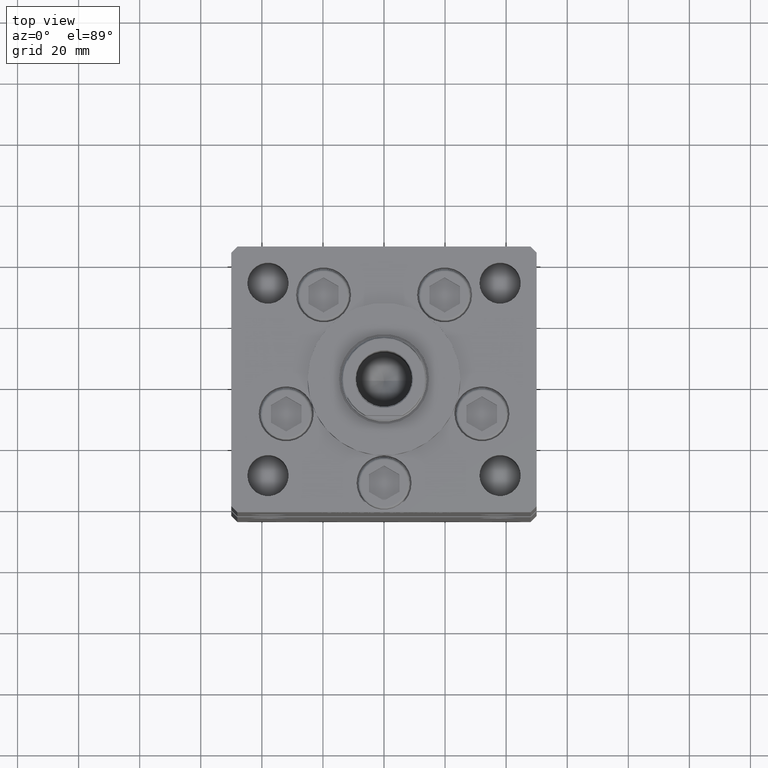
[diagram: clean part render]
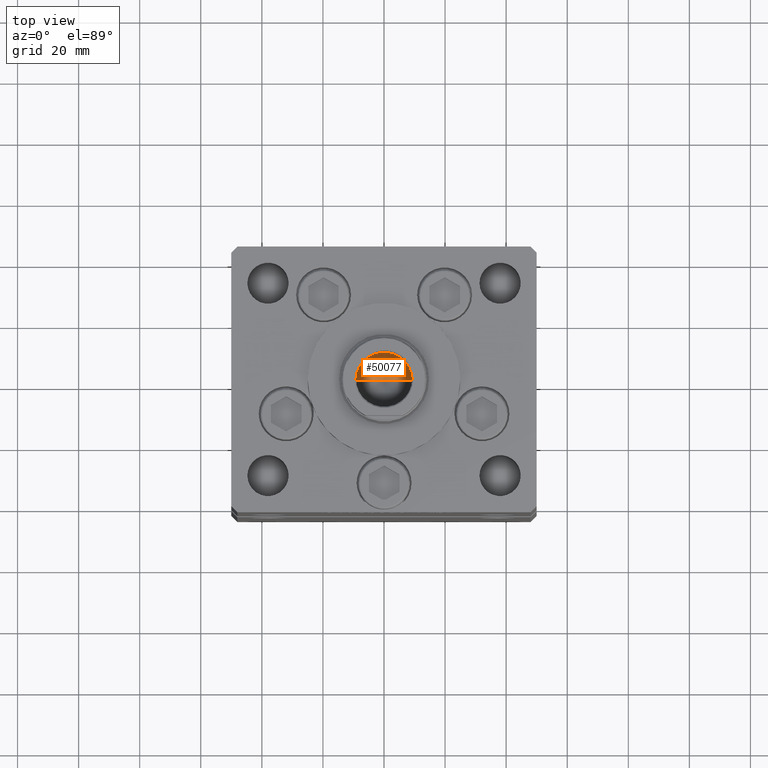
[diagram: same view with one face highlighted and labeled with its STEP entity id]
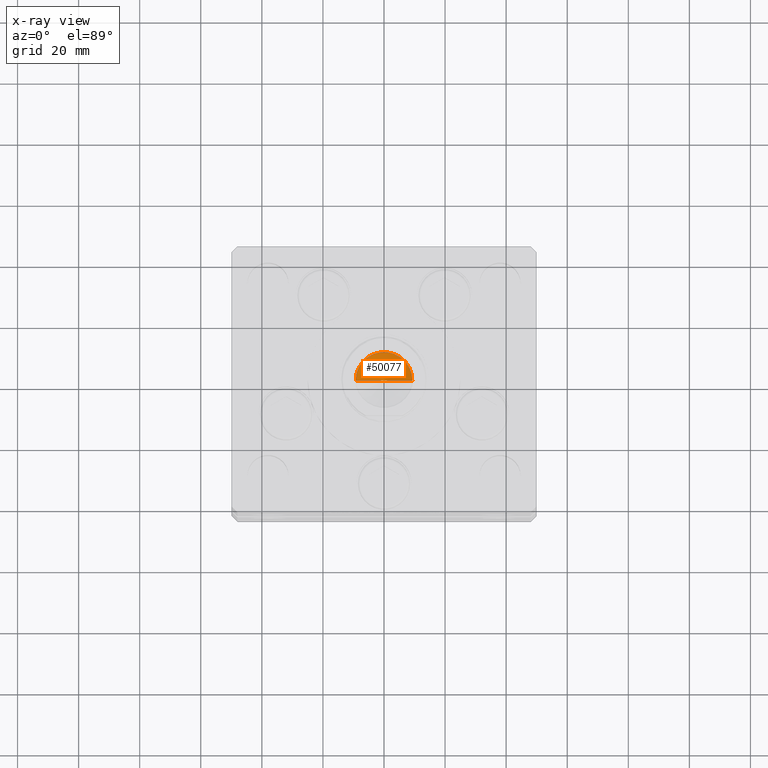
[diagram: x-ray of the same camera — body ghosted, the highlighted face saturated]
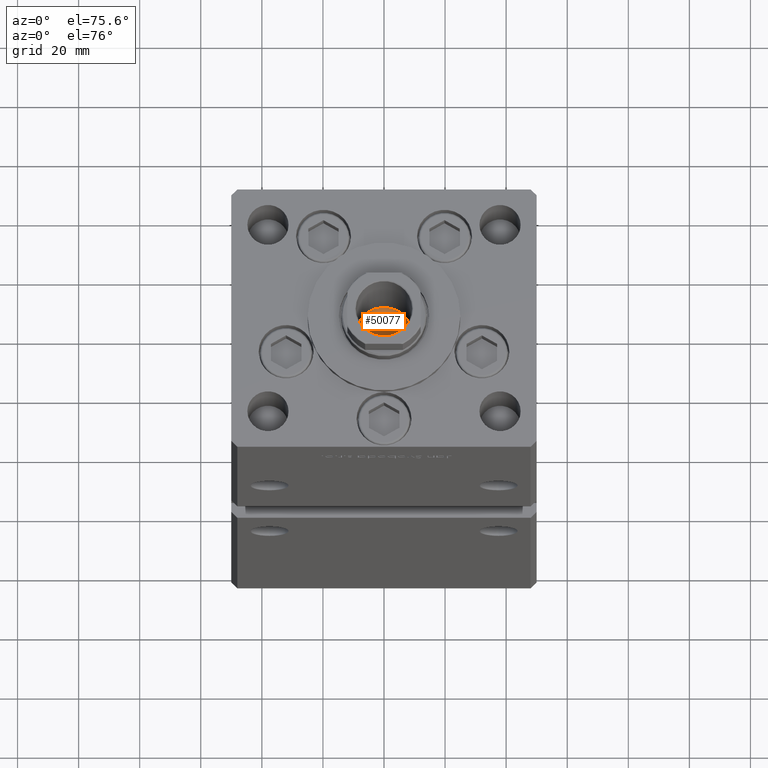
[diagram: same view with one face highlighted and labeled with its STEP entity id]
A machine part, top view. The second image highlights one B-rep face of the part: STEP entity #50077.
The next image is the same camera in x-ray: the body ghosted, the highlighted face saturated — about 0% of this face is hidden behind the body in this view.
A second angle (auxiliary view) of the same face is appended — the face is thin or edge-on in the first view.
In plain terms, the highlighted conical surface has half-angle 59 deg.
Its self-contained STEP definition (entity closure, byte-faithful):
#237 = CARTESIAN_POINT ( 'NONE',  ( 9.249999999999994671, 0.000000000000000000, 130.2500000000000000 ) ) ;
#2674 = CARTESIAN_POINT ( 'NONE',  ( 0.000000000000000000, 0.000000000000000000, 130.2500000000000000 ) ) ;
#4368 = CARTESIAN_POINT ( 'NONE',  ( 0.000000000000000000, 0.000000000000000000, 130.2500000000000000 ) ) ;
#5961 = ORIENTED_EDGE ( 'NONE', *, *, #29790, .T. ) ;
#10591 = VERTEX_POINT ( 'NONE', #237 ) ;
#13629 = ORIENTED_EDGE ( 'NONE', *, *, #22227, .T. ) ;
#16474 = EDGE_CURVE ( 'NONE', #52162, #29485, #29486, .T. ) ;
#20765 = DIRECTION ( 'NONE',  ( 1.000000000000000000, 0.000000000000000000, 0.000000000000000000 ) ) ;
#21173 = CARTESIAN_POINT ( 'NONE',  ( -9.249999999999994671, 1.132798289211300909E-15, 130.2500000000000000 ) ) ;
#22048 = FACE_OUTER_BOUND ( 'NONE', #29164, .T. ) ;
#22227 = EDGE_CURVE ( 'NONE', #52162, #10591, #32612, .T. ) ;
#23485 = CARTESIAN_POINT ( 'NONE',  ( 9.249999999999994671, 0.000000000000000000, 130.2500000000000000 ) ) ;
#26882 = DIRECTION ( 'NONE',  ( -0.000000000000000000, -0.000000000000000000, 1.000000000000000000 ) ) ;
#27151 = DIRECTION ( 'NONE',  ( 1.000000000000000000, 0.000000000000000000, 0.000000000000000000 ) ) ;
#27964 = AXIS2_PLACEMENT_3D ( 'NONE', #2674, #26882, #27151 ) ;
#29164 = EDGE_LOOP ( 'NONE', ( #45129, #13629, #5961 ) ) ;
#29485 = VERTEX_POINT ( 'NONE', #37234 ) ;
#29486 = LINE ( 'NONE', #21173, #36288 ) ;
#29790 = EDGE_CURVE ( 'NONE', #10591, #29485, #46897, .T. ) ;
#32612 = LINE ( 'NONE', #23485, #37173 ) ;
#32874 = DIRECTION ( 'NONE',  ( 0.8571673007021117785, 0.000000000000000000, 0.5150380749100550437 ) ) ;
#34330 = DIRECTION ( 'NONE',  ( -0.8571673007021117785, 1.049727191138617956E-16, 0.5150380749100550437 ) ) ;
#36288 = VECTOR ( 'NONE', #34330, 1000.000000000000000 ) ;
#37173 = VECTOR ( 'NONE', #32874, 1000.000000000000000 ) ;
#37234 = CARTESIAN_POINT ( 'NONE',  ( -9.249999999999994671, 1.132798289211300909E-15, 130.2500000000000000 ) ) ;
#37393 = AXIS2_PLACEMENT_3D ( 'NONE', #4368, #41223, #20765 ) ;
#37430 = CONICAL_SURFACE ( 'NONE', #27964, 9.249999999999994671, 1.029744258676653423 ) ;
#41223 = DIRECTION ( 'NONE',  ( -0.000000000000000000, -0.000000000000000000, 1.000000000000000000 ) ) ;
#45129 = ORIENTED_EDGE ( 'NONE', *, *, #16474, .F. ) ;
#46897 = CIRCLE ( 'NONE', #37393, 9.249999999999994671 ) ;
#50077 = ADVANCED_FACE ( 'NONE', ( #22048 ), #37430, .F. ) ;
#50730 = CARTESIAN_POINT ( 'NONE',  ( -1.046994375366439223E-14, 0.000000000000000000, 124.6920392739950643 ) ) ;
#52162 = VERTEX_POINT ( 'NONE', #50730 ) ;